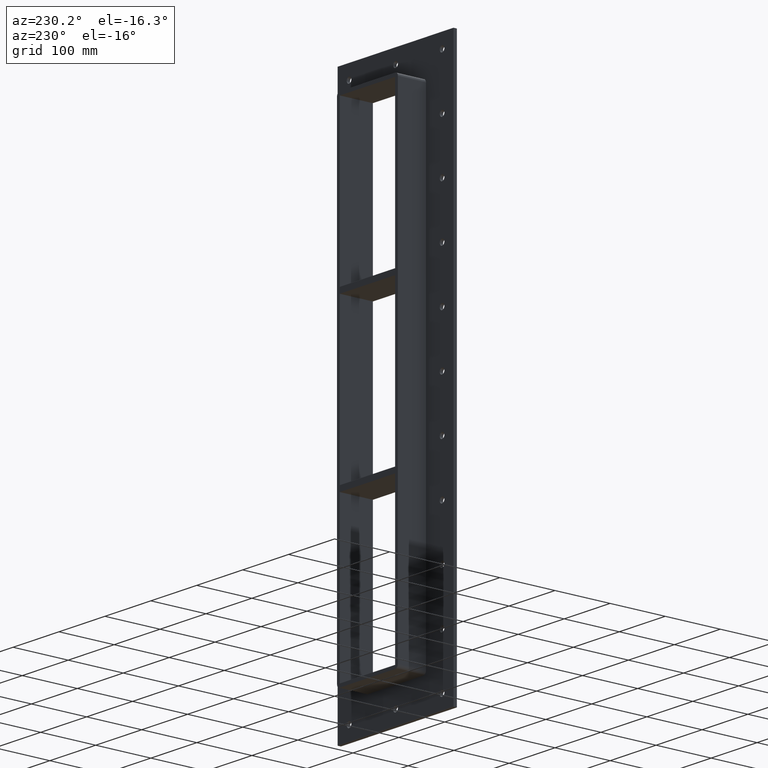
[diagram: clean part render]
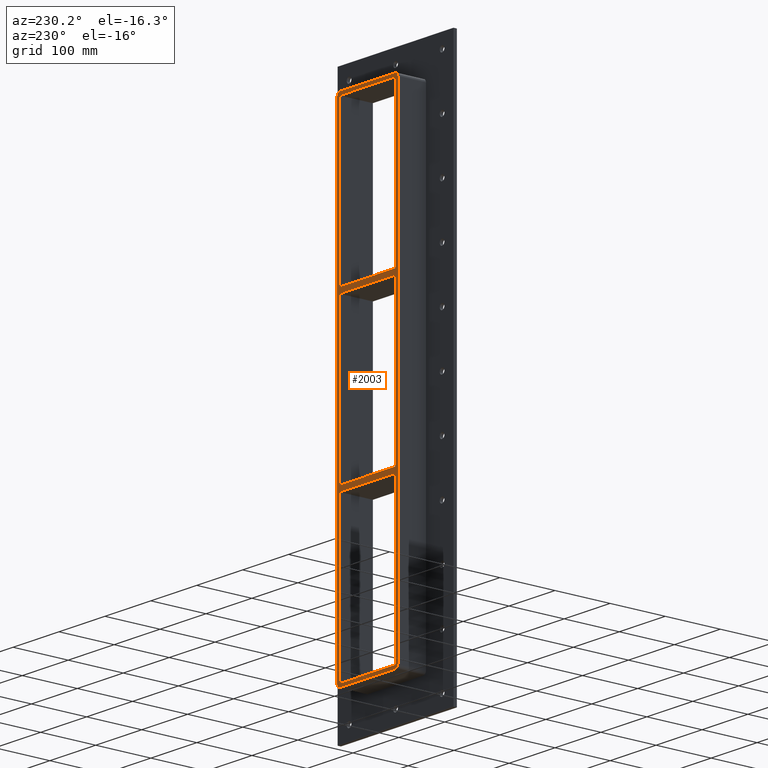
[diagram: same view with one face highlighted and labeled with its STEP entity id]
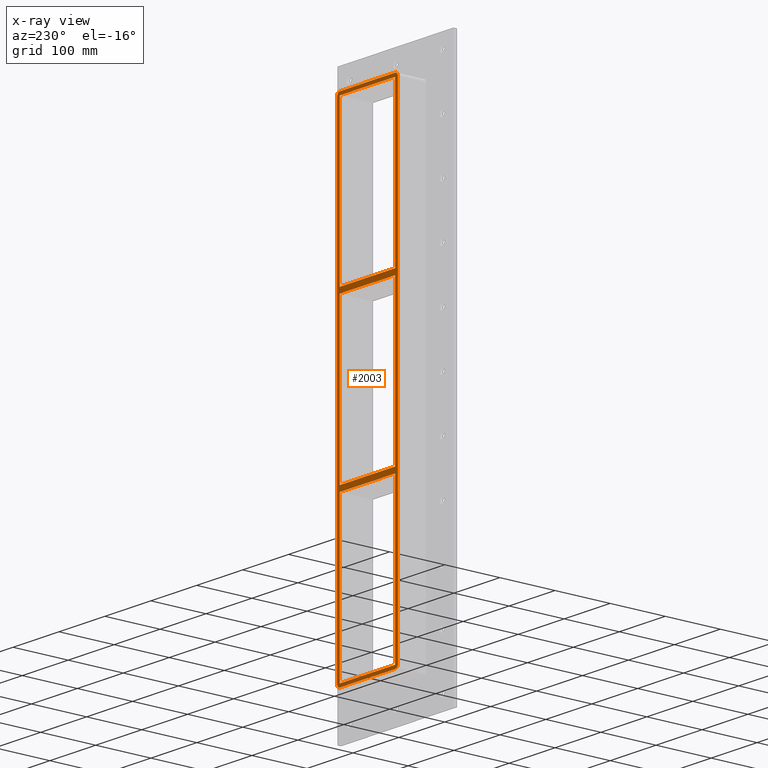
[diagram: x-ray of the same camera — body ghosted, the highlighted face saturated]
A machine part, auxiliary view. The second image highlights one B-rep face of the part: STEP entity #2003.
The next image is the same camera in x-ray: the body ghosted, the highlighted face saturated — about 0% of this face is hidden behind the body in this view.
In plain terms, the highlighted planar face has unit normal (0, 1, 0).
Its self-contained STEP definition (entity closure, byte-faithful):
#755=CARTESIAN_POINT('',(-60.249999999999666,57.0,138.99999999998886));
#756=VERTEX_POINT('',#755);
#763=CARTESIAN_POINT('',(60.249999999996362,57.0,138.999999999989));
#764=VERTEX_POINT('',#763);
#765=CARTESIAN_POINT('',(60.249999999996362,57.0,138.999999999989));
#766=DIRECTION('',(-1.0,0.0,0.0));
#767=VECTOR('',#766,120.49999999999602);
#768=LINE('',#765,#767);
#769=EDGE_CURVE('',#764,#756,#768,.T.);
#795=CARTESIAN_POINT('',(60.249999999999915,57.0,148.99999999999994));
#796=VERTEX_POINT('',#795);
#803=CARTESIAN_POINT('',(-60.249999999999666,57.0,148.99999999999994));
#804=VERTEX_POINT('',#803);
#805=CARTESIAN_POINT('',(-60.249999999999666,57.0,148.99999999999994));
#806=DIRECTION('',(1.0,0.0,0.0));
#807=VECTOR('',#806,120.49999999999957);
#808=LINE('',#805,#807);
#809=EDGE_CURVE('',#804,#796,#808,.T.);
#826=CARTESIAN_POINT('',(-60.249999999999993,57.0,426.99999999999994));
#827=VERTEX_POINT('',#826);
#828=CARTESIAN_POINT('',(-60.25,57.0,427.0));
#829=DIRECTION('',(0.0,0.0,-1.0));
#830=VECTOR('',#829,278.00000000000011);
#831=LINE('',#828,#830);
#832=EDGE_CURVE('',#827,#804,#831,.T.);
#857=CARTESIAN_POINT('',(60.249999999999915,57.0,-139.00000000000006));
#858=VERTEX_POINT('',#857);
#859=CARTESIAN_POINT('',(60.250000000000014,57.0,-139.00000000000003));
#860=DIRECTION('',(0.0,0.0,1.0));
#861=VECTOR('',#860,277.99999999998903);
#862=LINE('',#859,#861);
#863=EDGE_CURVE('',#858,#764,#862,.T.);
#896=CARTESIAN_POINT('',(60.250000000000014,57.0,426.99999999999994));
#897=VERTEX_POINT('',#896);
#904=CARTESIAN_POINT('',(60.250000000000014,57.0,148.99999999999994));
#905=DIRECTION('',(0.0,0.0,1.0));
#906=VECTOR('',#905,278.0);
#907=LINE('',#904,#906);
#908=EDGE_CURVE('',#796,#897,#907,.T.);
#928=CARTESIAN_POINT('',(-60.249999999999666,57.0,-149.00000000001114));
#929=VERTEX_POINT('',#928);
#936=CARTESIAN_POINT('',(60.249999999996362,57.0,-149.000000000011));
#937=VERTEX_POINT('',#936);
#938=CARTESIAN_POINT('',(60.249999999996362,57.0,-149.000000000011));
#939=DIRECTION('',(-1.0,0.0,0.0));
#940=VECTOR('',#939,120.49999999999602);
#941=LINE('',#938,#940);
#942=EDGE_CURVE('',#937,#929,#941,.T.);
#967=CARTESIAN_POINT('',(-60.249999999999666,57.0,-139.00000000000006));
#968=VERTEX_POINT('',#967);
#969=CARTESIAN_POINT('',(-60.249999999999666,57.0,-139.00000000000006));
#970=DIRECTION('',(1.0,0.0,0.0));
#971=VECTOR('',#970,120.49999999999957);
#972=LINE('',#969,#971);
#973=EDGE_CURVE('',#968,#858,#972,.T.);
#997=CARTESIAN_POINT('',(-60.25,57.0,138.99999999998883));
#998=DIRECTION('',(0.0,0.0,-1.0));
#999=VECTOR('',#998,277.99999999998886);
#1000=LINE('',#997,#999);
#1001=EDGE_CURVE('',#756,#968,#1000,.T.);
#1012=CARTESIAN_POINT('',(60.250000000000014,57.0,-427.00000000000011));
#1013=VERTEX_POINT('',#1012);
#1014=CARTESIAN_POINT('',(60.250000000000014,57.0,-427.00000000000011));
#1015=DIRECTION('',(0.0,0.0,1.0));
#1016=VECTOR('',#1015,277.9999999999892);
#1017=LINE('',#1014,#1016);
#1018=EDGE_CURVE('',#1013,#937,#1017,.T.);
#1483=CARTESIAN_POINT('',(-60.249999999999993,57.0,-427.00000000000011));
#1484=VERTEX_POINT('',#1483);
#1491=CARTESIAN_POINT('',(-60.25,57.0,-149.00000000001114));
#1492=DIRECTION('',(0.0,0.0,-1.0));
#1493=VECTOR('',#1492,277.99999999998897);
#1494=LINE('',#1491,#1493);
#1495=EDGE_CURVE('',#929,#1484,#1494,.T.);
#1538=CARTESIAN_POINT('',(66.25,57.0,426.99999999999994));
#1539=VERTEX_POINT('',#1538);
#1546=CARTESIAN_POINT('',(60.25,57.0,433.0));
#1547=VERTEX_POINT('',#1546);
#1548=CARTESIAN_POINT('',(60.25,57.0,426.99999999999994));
#1549=DIRECTION('',(0.0,-1.0,0.0));
#1550=DIRECTION('',(0.707106781186542,0.0,0.707106781186553));
#1551=AXIS2_PLACEMENT_3D('',#1548,#1549,#1550);
#1552=CIRCLE('',#1551,6.000000000000001);
#1553=EDGE_CURVE('',#1539,#1547,#1552,.T.);
#1594=CARTESIAN_POINT('',(66.25,57.0,-427.0));
#1595=VERTEX_POINT('',#1594);
#1602=CARTESIAN_POINT('',(66.25,57.0,427.0));
#1603=DIRECTION('',(0.0,0.0,-1.0));
#1604=VECTOR('',#1603,854.0);
#1605=LINE('',#1602,#1604);
#1606=EDGE_CURVE('',#1539,#1595,#1605,.T.);
#1667=CARTESIAN_POINT('',(60.25,57.0,-433.00000000000011));
#1668=VERTEX_POINT('',#1667);
#1675=CARTESIAN_POINT('',(60.25,57.0,-427.0));
#1676=DIRECTION('',(0.0,-1.0,0.0));
#1677=DIRECTION('',(0.707106781186542,0.0,-0.707106781186553));
#1678=AXIS2_PLACEMENT_3D('',#1675,#1676,#1677);
#1679=CIRCLE('',#1678,6.000000000000001);
#1680=EDGE_CURVE('',#1668,#1595,#1679,.T.);
#1741=CARTESIAN_POINT('',(-60.25,57.0,-433.00000000000011));
#1742=VERTEX_POINT('',#1741);
#1749=CARTESIAN_POINT('',(60.25,57.0,-433.00000000000011));
#1750=DIRECTION('',(-1.0,0.0,0.0));
#1751=VECTOR('',#1750,120.5);
#1752=LINE('',#1749,#1751);
#1753=EDGE_CURVE('',#1668,#1742,#1752,.T.);
#1851=CARTESIAN_POINT('',(-66.25,57.0,-427.00000000000017));
#1852=VERTEX_POINT('',#1851);
#1859=CARTESIAN_POINT('',(-60.25,57.0,-427.00000000000017));
#1860=DIRECTION('',(0.0,-1.0,0.0));
#1861=DIRECTION('',(-0.707106781186551,0.0,-0.707106781186544));
#1862=AXIS2_PLACEMENT_3D('',#1859,#1860,#1861);
#1863=CIRCLE('',#1862,6.0);
#1864=EDGE_CURVE('',#1852,#1742,#1863,.T.);
#1876=CARTESIAN_POINT('',(-66.25,57.0,426.99999999999989));
#1877=VERTEX_POINT('',#1876);
#1884=CARTESIAN_POINT('',(-66.25,57.0,-427.00000000000017));
#1885=DIRECTION('',(0.0,0.0,1.0));
#1886=VECTOR('',#1885,854.0);
#1887=LINE('',#1884,#1886);
#1888=EDGE_CURVE('',#1852,#1877,#1887,.T.);
#1900=CARTESIAN_POINT('',(-60.25,57.0,433.0));
#1901=VERTEX_POINT('',#1900);
#1908=CARTESIAN_POINT('',(-60.25,57.0,426.99999999999989));
#1909=DIRECTION('',(0.0,-1.0,0.0));
#1910=DIRECTION('',(-0.707106781186542,0.0,0.707106781186553));
#1911=AXIS2_PLACEMENT_3D('',#1908,#1909,#1910);
#1912=CIRCLE('',#1911,6.000000000000001);
#1913=EDGE_CURVE('',#1901,#1877,#1912,.T.);
#1926=CARTESIAN_POINT('',(-60.25,57.0,433.0));
#1927=DIRECTION('',(1.0,0.0,0.0));
#1928=VECTOR('',#1927,120.5);
#1929=LINE('',#1926,#1928);
#1930=EDGE_CURVE('',#1901,#1547,#1929,.T.);
#1942=CARTESIAN_POINT('',(60.250000000000014,57.0,427.0));
#1943=DIRECTION('',(-1.0,0.0,0.0));
#1944=VECTOR('',#1943,120.5);
#1945=LINE('',#1942,#1944);
#1946=EDGE_CURVE('',#897,#827,#1945,.T.);
#1961=CARTESIAN_POINT('',(-60.249999999999993,57.0,-427.00000000000011));
#1962=DIRECTION('',(1.0,0.0,0.0));
#1963=VECTOR('',#1962,120.5);
#1964=LINE('',#1961,#1963);
#1965=EDGE_CURVE('',#1484,#1013,#1964,.T.);
#1970=CARTESIAN_POINT('',(0.0,57.0,-6.831457E-014));
#1971=DIRECTION('',(0.0,1.0,0.0));
#1972=DIRECTION('',(0.0,0.0,1.0));
#1973=AXIS2_PLACEMENT_3D('',#1970,#1971,#1972);
#1974=PLANE('',#1973);
#1975=ORIENTED_EDGE('',*,*,#1680,.F.);
#1976=ORIENTED_EDGE('',*,*,#1753,.T.);
#1977=ORIENTED_EDGE('',*,*,#1864,.F.);
#1978=ORIENTED_EDGE('',*,*,#1888,.T.);
#1979=ORIENTED_EDGE('',*,*,#1913,.F.);
#1980=ORIENTED_EDGE('',*,*,#1930,.T.);
#1981=ORIENTED_EDGE('',*,*,#1553,.F.);
#1982=ORIENTED_EDGE('',*,*,#1606,.T.);
#1983=EDGE_LOOP('',(#1975,#1976,#1977,#1978,#1979,#1980,#1981,#1982));
#1984=FACE_OUTER_BOUND('',#1983,.T.);
#1985=ORIENTED_EDGE('',*,*,#1001,.T.);
#1986=ORIENTED_EDGE('',*,*,#973,.T.);
#1987=ORIENTED_EDGE('',*,*,#863,.T.);
#1988=ORIENTED_EDGE('',*,*,#769,.T.);
#1989=EDGE_LOOP('',(#1985,#1986,#1987,#1988));
#1990=FACE_BOUND('',#1989,.T.);
#1991=ORIENTED_EDGE('',*,*,#1495,.T.);
#1992=ORIENTED_EDGE('',*,*,#1965,.T.);
#1993=ORIENTED_EDGE('',*,*,#1018,.T.);
#1994=ORIENTED_EDGE('',*,*,#942,.T.);
#1995=EDGE_LOOP('',(#1991,#1992,#1993,#1994));
#1996=FACE_BOUND('',#1995,.T.);
#1997=ORIENTED_EDGE('',*,*,#809,.T.);
#1998=ORIENTED_EDGE('',*,*,#908,.T.);
#1999=ORIENTED_EDGE('',*,*,#1946,.T.);
#2000=ORIENTED_EDGE('',*,*,#832,.T.);
#2001=EDGE_LOOP('',(#1997,#1998,#1999,#2000));
#2002=FACE_BOUND('',#2001,.T.);
#2003=ADVANCED_FACE('',(#1984,#1990,#1996,#2002),#1974,.T.);